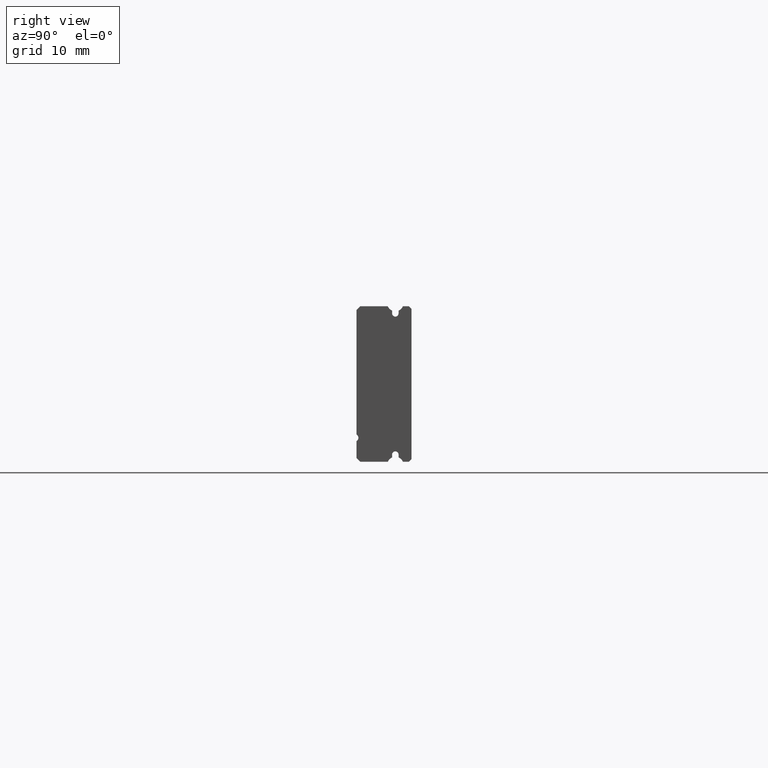
[diagram: clean part render]
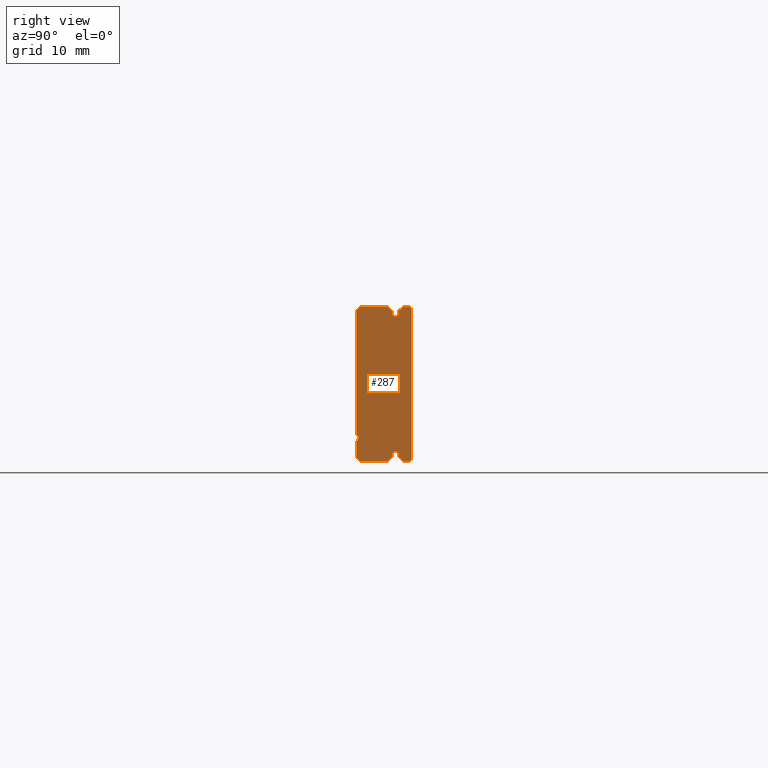
[diagram: same view with one face highlighted and labeled with its STEP entity id]
A machine part, right view. The second image highlights one B-rep face of the part: STEP entity #287.
In plain terms, the highlighted planar face has unit normal (1, 0, 0).
Its self-contained STEP definition (entity closure, byte-faithful):
#80 = VERTEX_POINT ( 'NONE', #630 ) ;
#84 = EDGE_CURVE ( 'NONE', #80, #394, #622, .T. ) ;
#87 = EDGE_CURVE ( 'NONE', #1862, #104, #618, .T. ) ;
#90 = VERTEX_POINT ( 'NONE', #669 ) ;
#93 = EDGE_CURVE ( 'NONE', #90, #80, #668, .T. ) ;
#98 = EDGE_CURVE ( 'NONE', #104, #280, #653, .T. ) ;
#104 = VERTEX_POINT ( 'NONE', #706 ) ;
#119 = VERTEX_POINT ( 'NONE', #691 ) ;
#125 = EDGE_CURVE ( 'NONE', #119, #90, #685, .T. ) ;
#150 = EDGE_CURVE ( 'NONE', #151, #119, #778, .T. ) ;
#151 = VERTEX_POINT ( 'NONE', #774 ) ;
#156 = VERTEX_POINT ( 'NONE', #762 ) ;
#176 = VERTEX_POINT ( 'NONE', #787 ) ;
#181 = EDGE_CURVE ( 'NONE', #176, #151, #785, .T. ) ;
#189 = EDGE_CURVE ( 'NONE', #156, #229, #831, .T. ) ;
#229 = VERTEX_POINT ( 'NONE', #894 ) ;
#238 = VERTEX_POINT ( 'NONE', #934 ) ;
#252 = EDGE_CURVE ( 'NONE', #238, #156, #913, .T. ) ;
#272 = EDGE_CURVE ( 'NONE', #274, #238, #989, .T. ) ;
#274 = VERTEX_POINT ( 'NONE', #985 ) ;
#279 = EDGE_CURVE ( 'NONE', #280, #274, #979, .T. ) ;
#280 = VERTEX_POINT ( 'NONE', #974 ) ;
#287 = ADVANCED_FACE ( 'NONE', ( #969 ), #968, .T. ) ;
#288 = VERTEX_POINT ( 'NONE', #1024 ) ;
#290 = ORIENTED_EDGE ( 'NONE', *, *, #189, .T. ) ;
#291 = EDGE_LOOP ( 'NONE', ( #290, #292, #309, #315, #306, #304, #298, #326, #323, #317, #320, #311, #337, #334, #335, #333, #332, #331, #330, #329, #327, #328, #350 ) ) ;
#292 = ORIENTED_EDGE ( 'NONE', *, *, #294, .F. ) ;
#294 = EDGE_CURVE ( 'NONE', #288, #229, #1019, .T. ) ;
#298 = ORIENTED_EDGE ( 'NONE', *, *, #299, .F. ) ;
#299 = EDGE_CURVE ( 'NONE', #300, #301, #1014, .T. ) ;
#300 = VERTEX_POINT ( 'NONE', #1010 ) ;
#301 = VERTEX_POINT ( 'NONE', #1009 ) ;
#302 = EDGE_CURVE ( 'NONE', #301, #303, #1008, .T. ) ;
#303 = VERTEX_POINT ( 'NONE', #1003 ) ;
#304 = ORIENTED_EDGE ( 'NONE', *, *, #302, .F. ) ;
#305 = VERTEX_POINT ( 'NONE', #1002 ) ;
#306 = ORIENTED_EDGE ( 'NONE', *, *, #307, .F. ) ;
#307 = EDGE_CURVE ( 'NONE', #303, #305, #1001, .T. ) ;
#308 = VERTEX_POINT ( 'NONE', #1057 ) ;
#309 = ORIENTED_EDGE ( 'NONE', *, *, #313, .F. ) ;
#310 = VERTEX_POINT ( 'NONE', #1056 ) ;
#311 = ORIENTED_EDGE ( 'NONE', *, *, #314, .F. ) ;
#312 = EDGE_CURVE ( 'NONE', #305, #310, #1055, .T. ) ;
#313 = EDGE_CURVE ( 'NONE', #310, #288, #1051, .T. ) ;
#314 = EDGE_CURVE ( 'NONE', #176, #308, #1047, .T. ) ;
#315 = ORIENTED_EDGE ( 'NONE', *, *, #312, .F. ) ;
#316 = VERTEX_POINT ( 'NONE', #1043 ) ;
#317 = ORIENTED_EDGE ( 'NONE', *, *, #319, .F. ) ;
#318 = VERTEX_POINT ( 'NONE', #1042 ) ;
#319 = EDGE_CURVE ( 'NONE', #318, #316, #1041, .T. ) ;
#320 = ORIENTED_EDGE ( 'NONE', *, *, #321, .F. ) ;
#321 = EDGE_CURVE ( 'NONE', #308, #318, #1036, .T. ) ;
#322 = EDGE_CURVE ( 'NONE', #316, #325, #1032, .T. ) ;
#323 = ORIENTED_EDGE ( 'NONE', *, *, #322, .F. ) ;
#324 = EDGE_CURVE ( 'NONE', #325, #300, #1090, .T. ) ;
#325 = VERTEX_POINT ( 'NONE', #1085 ) ;
#326 = ORIENTED_EDGE ( 'NONE', *, *, #324, .F. ) ;
#327 = ORIENTED_EDGE ( 'NONE', *, *, #279, .T. ) ;
#328 = ORIENTED_EDGE ( 'NONE', *, *, #272, .T. ) ;
#329 = ORIENTED_EDGE ( 'NONE', *, *, #98, .T. ) ;
#330 = ORIENTED_EDGE ( 'NONE', *, *, #87, .T. ) ;
#331 = ORIENTED_EDGE ( 'NONE', *, *, #1860, .T. ) ;
#332 = ORIENTED_EDGE ( 'NONE', *, *, #84, .T. ) ;
#333 = ORIENTED_EDGE ( 'NONE', *, *, #93, .T. ) ;
#334 = ORIENTED_EDGE ( 'NONE', *, *, #150, .T. ) ;
#335 = ORIENTED_EDGE ( 'NONE', *, *, #125, .T. ) ;
#337 = ORIENTED_EDGE ( 'NONE', *, *, #181, .T. ) ;
#350 = ORIENTED_EDGE ( 'NONE', *, *, #252, .T. ) ;
#394 = VERTEX_POINT ( 'NONE', #1177 ) ;
#618 = CIRCLE ( 'NONE', #678, 0.5000000000000004400 ) ;
#619 = DIRECTION ( 'NONE',  ( 0.0000000000000000000, 0.0000000000000000000, -1.000000000000000000 ) ) ;
#620 = VECTOR ( 'NONE', #619, 1000.000000000000000 ) ;
#621 = CARTESIAN_POINT ( 'NONE',  ( 0.0000000000000000000, 6.499999999999997300, 11.33256691840602700 ) ) ;
#622 = LINE ( 'NONE', #621, #620 ) ;
#630 = CARTESIAN_POINT ( 'NONE',  ( 0.0000000000000000000, 6.499999999999997300, 11.33256691840602700 ) ) ;
#650 = DIRECTION ( 'NONE',  ( 0.0000000000000000000, 0.0000000000000000000, 1.000000000000000000 ) ) ;
#651 = VECTOR ( 'NONE', #650, 1000.000000000000000 ) ;
#652 = CARTESIAN_POINT ( 'NONE',  ( 0.0000000000000000000, 5.499999999999998200, 11.33256691840602700 ) ) ;
#653 = LINE ( 'NONE', #652, #651 ) ;
#664 = DIRECTION ( 'NONE',  ( 0.0000000000000000000, 0.0000000000000000000, 1.000000000000000000 ) ) ;
#665 = DIRECTION ( 'NONE',  ( -1.000000000000000000, 0.0000000000000000000, 0.0000000000000000000 ) ) ;
#666 = CARTESIAN_POINT ( 'NONE',  ( 0.0000000000000000000, 5.999999999999997300, 12.50000000000000000 ) ) ;
#667 = AXIS2_PLACEMENT_3D ( 'NONE', #666, #665, #664 ) ;
#668 = CIRCLE ( 'NONE', #667, 1.270000000000000200 ) ;
#669 = CARTESIAN_POINT ( 'NONE',  ( 0.0000000000000000000, 7.167433081593971500, 12.00000000000000200 ) ) ;
#675 = DIRECTION ( 'NONE',  ( 0.0000000000000000000, 0.0000000000000000000, -1.000000000000000000 ) ) ;
#676 = DIRECTION ( 'NONE',  ( -1.000000000000000000, 0.0000000000000000000, 0.0000000000000000000 ) ) ;
#677 = CARTESIAN_POINT ( 'NONE',  ( 0.0000000000000000000, 5.999999999999997300, 10.90000000000000000 ) ) ;
#678 = AXIS2_PLACEMENT_3D ( 'NONE', #677, #676, #675 ) ;
#682 = DIRECTION ( 'NONE',  ( 0.0000000000000000000, -1.000000000000000000, 1.860159782358419900E-015 ) ) ;
#683 = VECTOR ( 'NONE', #682, 1000.000000000000000 ) ;
#684 = CARTESIAN_POINT ( 'NONE',  ( 0.0000000000000000000, 8.099999999999992500, 12.00000000000000000 ) ) ;
#685 = LINE ( 'NONE', #684, #683 ) ;
#691 = CARTESIAN_POINT ( 'NONE',  ( 0.0000000000000000000, 8.099999999999992500, 12.00000000000000000 ) ) ;
#706 = CARTESIAN_POINT ( 'NONE',  ( 0.0000000000000000000, 5.499999999999998200, 10.90000000000000000 ) ) ;
#762 = CARTESIAN_POINT ( 'NONE',  ( 0.0000000000000000000, -1.409462824231155800E-015, 11.39999999999999900 ) ) ;
#774 = CARTESIAN_POINT ( 'NONE',  ( 0.0000000000000000000, 8.499999999999996400, 11.60000000000000100 ) ) ;
#775 = DIRECTION ( 'NONE',  ( 0.0000000000000000000, -0.7071067811865521200, 0.7071067811865430200 ) ) ;
#776 = VECTOR ( 'NONE', #775, 999.9999999999998900 ) ;
#777 = CARTESIAN_POINT ( 'NONE',  ( 0.0000000000000000000, 8.499999999999996400, 11.60000000000000100 ) ) ;
#778 = LINE ( 'NONE', #777, #776 ) ;
#782 = DIRECTION ( 'NONE',  ( 0.0000000000000000000, -5.981805089575196200E-016, 1.000000000000000000 ) ) ;
#783 = VECTOR ( 'NONE', #782, 1000.000000000000000 ) ;
#784 = CARTESIAN_POINT ( 'NONE',  ( 0.0000000000000000000, 8.500000000000003600, 0.0000000000000000000 ) ) ;
#785 = LINE ( 'NONE', #784, #783 ) ;
#787 = CARTESIAN_POINT ( 'NONE',  ( 0.0000000000000000000, 8.499999999999996400, -11.60000000000000100 ) ) ;
#828 = DIRECTION ( 'NONE',  ( 0.0000000000000000000, 1.254156427505175200E-016, -1.000000000000000000 ) ) ;
#829 = VECTOR ( 'NONE', #828, 1000.000000000000000 ) ;
#830 = CARTESIAN_POINT ( 'NONE',  ( 0.0000000000000000000, 0.0000000000000000000, 0.0000000000000000000 ) ) ;
#831 = LINE ( 'NONE', #830, #829 ) ;
#894 = CARTESIAN_POINT ( 'NONE',  ( 0.0000000000000000000, -9.757819552369539900E-016, -7.780384757729334100 ) ) ;
#905 = DIRECTION ( 'NONE',  ( 0.0000000000000000000, -0.7071067811865470200, -0.7071067811865479100 ) ) ;
#906 = VECTOR ( 'NONE', #905, 1000.000000000000100 ) ;
#907 = CARTESIAN_POINT ( 'NONE',  ( 0.0000000000000000000, -1.409462824231155800E-015, 11.39999999999999900 ) ) ;
#913 = LINE ( 'NONE', #907, #906 ) ;
#934 = CARTESIAN_POINT ( 'NONE',  ( 0.0000000000000000000, 0.5999999999999976500, 11.99999999999999800 ) ) ;
#968 = PLANE ( 'NONE',  #1028 ) ;
#969 = FACE_OUTER_BOUND ( 'NONE', #291, .T. ) ;
#974 = CARTESIAN_POINT ( 'NONE',  ( 0.0000000000000000000, 5.499999999999998200, 11.33256691840602700 ) ) ;
#975 = DIRECTION ( 'NONE',  ( 0.0000000000000000000, 0.0000000000000000000, -1.000000000000000000 ) ) ;
#976 = DIRECTION ( 'NONE',  ( -1.000000000000000000, 0.0000000000000000000, 0.0000000000000000000 ) ) ;
#977 = CARTESIAN_POINT ( 'NONE',  ( 0.0000000000000000000, 5.999999999999997300, 12.50000000000000000 ) ) ;
#978 = AXIS2_PLACEMENT_3D ( 'NONE', #977, #976, #975 ) ;
#979 = CIRCLE ( 'NONE', #978, 1.270000000000000200 ) ;
#985 = CARTESIAN_POINT ( 'NONE',  ( 0.0000000000000000000, 4.832566918406024000, 12.00000000000000200 ) ) ;
#986 = DIRECTION ( 'NONE',  ( 0.0000000000000000000, -1.000000000000000000, -8.197027994681295400E-016 ) ) ;
#987 = VECTOR ( 'NONE', #986, 1000.000000000000000 ) ;
#988 = CARTESIAN_POINT ( 'NONE',  ( 0.0000000000000000000, 0.5999999999999976500, 11.99999999999999800 ) ) ;
#989 = LINE ( 'NONE', #988, #987 ) ;
#998 = DIRECTION ( 'NONE',  ( 0.0000000000000000000, -1.000000000000000000, 8.197027994681295400E-016 ) ) ;
#999 = VECTOR ( 'NONE', #998, 1000.000000000000000 ) ;
#1000 = CARTESIAN_POINT ( 'NONE',  ( 0.0000000000000000000, 0.5999999999999976500, -11.99999999999999800 ) ) ;
#1001 = LINE ( 'NONE', #1000, #999 ) ;
#1002 = CARTESIAN_POINT ( 'NONE',  ( 0.0000000000000000000, 0.5999999999999976500, -11.99999999999999800 ) ) ;
#1003 = CARTESIAN_POINT ( 'NONE',  ( 0.0000000000000000000, 4.832566918406024000, -12.00000000000000200 ) ) ;
#1004 = DIRECTION ( 'NONE',  ( 0.0000000000000000000, 0.0000000000000000000, 1.000000000000000000 ) ) ;
#1005 = DIRECTION ( 'NONE',  ( 1.000000000000000000, 0.0000000000000000000, 0.0000000000000000000 ) ) ;
#1006 = CARTESIAN_POINT ( 'NONE',  ( 0.0000000000000000000, 5.999999999999997300, -12.50000000000000000 ) ) ;
#1007 = AXIS2_PLACEMENT_3D ( 'NONE', #1006, #1005, #1004 ) ;
#1008 = CIRCLE ( 'NONE', #1007, 1.270000000000000200 ) ;
#1009 = CARTESIAN_POINT ( 'NONE',  ( 0.0000000000000000000, 5.499999999999998200, -11.33256691840602700 ) ) ;
#1010 = CARTESIAN_POINT ( 'NONE',  ( 0.0000000000000000000, 5.499999999999998200, -10.90000000000000000 ) ) ;
#1011 = DIRECTION ( 'NONE',  ( 0.0000000000000000000, 0.0000000000000000000, -1.000000000000000000 ) ) ;
#1012 = VECTOR ( 'NONE', #1011, 1000.000000000000000 ) ;
#1013 = CARTESIAN_POINT ( 'NONE',  ( 0.0000000000000000000, 5.499999999999998200, -11.33256691840602700 ) ) ;
#1014 = LINE ( 'NONE', #1013, #1012 ) ;
#1015 = DIRECTION ( 'NONE',  ( 0.0000000000000000000, 0.0000000000000000000, 1.000000000000000000 ) ) ;
#1016 = DIRECTION ( 'NONE',  ( 1.000000000000000000, 0.0000000000000000000, 0.0000000000000000000 ) ) ;
#1017 = CARTESIAN_POINT ( 'NONE',  ( 0.0000000000000000000, -0.3000000000000001000, -8.299999999999998900 ) ) ;
#1018 = AXIS2_PLACEMENT_3D ( 'NONE', #1017, #1016, #1015 ) ;
#1019 = CIRCLE ( 'NONE', #1018, 0.5999999999999998700 ) ;
#1024 = CARTESIAN_POINT ( 'NONE',  ( 0.0000000000000000000, -7.589415207398531000E-016, -8.819615242270661100 ) ) ;
#1025 = DIRECTION ( 'NONE',  ( 0.0000000000000000000, 0.0000000000000000000, -1.000000000000000000 ) ) ;
#1026 = DIRECTION ( 'NONE',  ( 1.000000000000000000, 0.0000000000000000000, 0.0000000000000000000 ) ) ;
#1027 = CARTESIAN_POINT ( 'NONE',  ( 0.0000000000000000000, -0.3000000000000001000, 8.299999999999998900 ) ) ;
#1028 = AXIS2_PLACEMENT_3D ( 'NONE', #1027, #1026, #1025 ) ;
#1029 = DIRECTION ( 'NONE',  ( 0.0000000000000000000, 0.0000000000000000000, 1.000000000000000000 ) ) ;
#1030 = VECTOR ( 'NONE', #1029, 1000.000000000000000 ) ;
#1031 = CARTESIAN_POINT ( 'NONE',  ( 0.0000000000000000000, 6.499999999999997300, -11.33256691840602700 ) ) ;
#1032 = LINE ( 'NONE', #1031, #1030 ) ;
#1033 = DIRECTION ( 'NONE',  ( 0.0000000000000000000, -1.000000000000000000, -1.860159782358419900E-015 ) ) ;
#1034 = VECTOR ( 'NONE', #1033, 1000.000000000000000 ) ;
#1035 = CARTESIAN_POINT ( 'NONE',  ( 0.0000000000000000000, 8.099999999999992500, -12.00000000000000000 ) ) ;
#1036 = LINE ( 'NONE', #1035, #1034 ) ;
#1037 = DIRECTION ( 'NONE',  ( 0.0000000000000000000, 0.0000000000000000000, -1.000000000000000000 ) ) ;
#1038 = DIRECTION ( 'NONE',  ( 1.000000000000000000, 0.0000000000000000000, 0.0000000000000000000 ) ) ;
#1039 = CARTESIAN_POINT ( 'NONE',  ( 0.0000000000000000000, 5.999999999999997300, -12.50000000000000000 ) ) ;
#1040 = AXIS2_PLACEMENT_3D ( 'NONE', #1039, #1038, #1037 ) ;
#1041 = CIRCLE ( 'NONE', #1040, 1.270000000000000200 ) ;
#1042 = CARTESIAN_POINT ( 'NONE',  ( 0.0000000000000000000, 7.167433081593971500, -12.00000000000000200 ) ) ;
#1043 = CARTESIAN_POINT ( 'NONE',  ( 0.0000000000000000000, 6.499999999999997300, -11.33256691840602700 ) ) ;
#1044 = DIRECTION ( 'NONE',  ( 0.0000000000000000000, -0.7071067811865521200, -0.7071067811865430200 ) ) ;
#1045 = VECTOR ( 'NONE', #1044, 999.9999999999998900 ) ;
#1046 = CARTESIAN_POINT ( 'NONE',  ( 0.0000000000000000000, 8.499999999999996400, -11.60000000000000100 ) ) ;
#1047 = LINE ( 'NONE', #1046, #1045 ) ;
#1048 = DIRECTION ( 'NONE',  ( 0.0000000000000000000, 1.260512219239239000E-016, 1.000000000000000000 ) ) ;
#1049 = VECTOR ( 'NONE', #1048, 1000.000000000000000 ) ;
#1050 = CARTESIAN_POINT ( 'NONE',  ( 0.0000000000000000000, -1.084202172485504400E-015, -8.819615242270661100 ) ) ;
#1051 = LINE ( 'NONE', #1050, #1049 ) ;
#1052 = DIRECTION ( 'NONE',  ( 0.0000000000000000000, -0.7071067811865470200, 0.7071067811865479100 ) ) ;
#1053 = VECTOR ( 'NONE', #1052, 1000.000000000000100 ) ;
#1054 = CARTESIAN_POINT ( 'NONE',  ( 0.0000000000000000000, -1.409462824231155800E-015, -11.39999999999999900 ) ) ;
#1055 = LINE ( 'NONE', #1054, #1053 ) ;
#1056 = CARTESIAN_POINT ( 'NONE',  ( 0.0000000000000000000, -1.409462824231155800E-015, -11.39999999999999900 ) ) ;
#1057 = CARTESIAN_POINT ( 'NONE',  ( 0.0000000000000000000, 8.099999999999992500, -12.00000000000000000 ) ) ;
#1085 = CARTESIAN_POINT ( 'NONE',  ( 0.0000000000000000000, 6.499999999999997300, -10.90000000000000000 ) ) ;
#1086 = DIRECTION ( 'NONE',  ( 0.0000000000000000000, 0.0000000000000000000, 1.000000000000000000 ) ) ;
#1087 = DIRECTION ( 'NONE',  ( 1.000000000000000000, 0.0000000000000000000, 0.0000000000000000000 ) ) ;
#1088 = CARTESIAN_POINT ( 'NONE',  ( 0.0000000000000000000, 5.999999999999997300, -10.90000000000000000 ) ) ;
#1089 = AXIS2_PLACEMENT_3D ( 'NONE', #1088, #1087, #1086 ) ;
#1090 = CIRCLE ( 'NONE', #1089, 0.5000000000000004400 ) ;
#1177 = CARTESIAN_POINT ( 'NONE',  ( 0.0000000000000000000, 6.499999999999997300, 10.90000000000000000 ) ) ;
#1420 = CARTESIAN_POINT ( 'NONE',  ( 0.0000000000000000000, 5.999999999999997300, 10.40000000000000000 ) ) ;
#1421 = DIRECTION ( 'NONE',  ( 0.0000000000000000000, 0.0000000000000000000, -1.000000000000000000 ) ) ;
#1422 = DIRECTION ( 'NONE',  ( -1.000000000000000000, 0.0000000000000000000, 0.0000000000000000000 ) ) ;
#1423 = CARTESIAN_POINT ( 'NONE',  ( 0.0000000000000000000, 5.999999999999997300, 10.90000000000000000 ) ) ;
#1424 = AXIS2_PLACEMENT_3D ( 'NONE', #1423, #1422, #1421 ) ;
#1425 = CIRCLE ( 'NONE', #1424, 0.5000000000000004400 ) ;
#1860 = EDGE_CURVE ( 'NONE', #394, #1862, #1425, .T. ) ;
#1862 = VERTEX_POINT ( 'NONE', #1420 ) ;